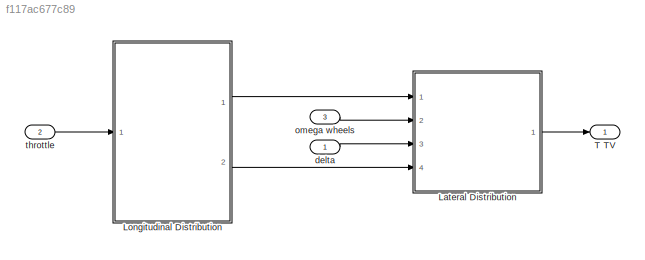
MODEL slx_f117ac677c89
KIND model
CONFIG AbsTol = auto
CONFIG EnableMultiTasking = off
CONFIG FixedStep = auto
CONFIG MaxStep = auto
CONFIG MinStep = auto
CONFIG RelTol = 1e-3
CONFIG SampleTimeConstraint = Unconstrained
CONFIG SolverName = VariableStepAuto
CONFIG StartTime = 0.0
CONFIG StopTime = 10.0
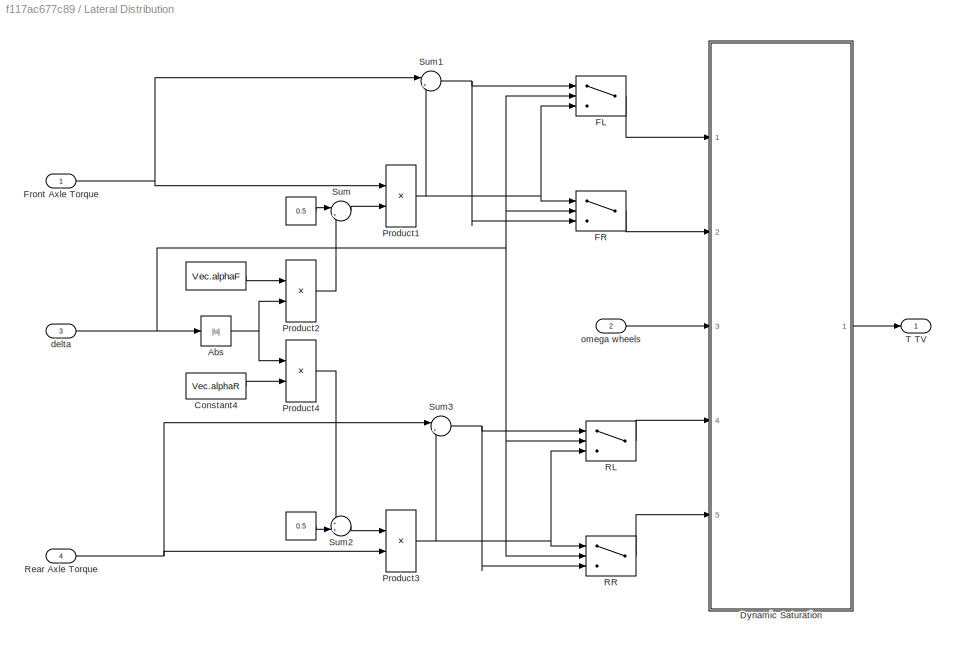
BLOCK [SubSystem] Lateral Distribution
  Ports = [4, 1]
  RequestExecContextInheritance = off
BLOCK [Constant] Lateral Distribution/ 
  Value = 0.5
BLOCK [Constant] Lateral Distribution/   
  Value = 0.5
BLOCK [Abs] Lateral Distribution/Abs
  SaturateOnIntegerOverflow = off
BLOCK [Constant] Lateral Distribution/Constant4
  Value = Vec.alphaR
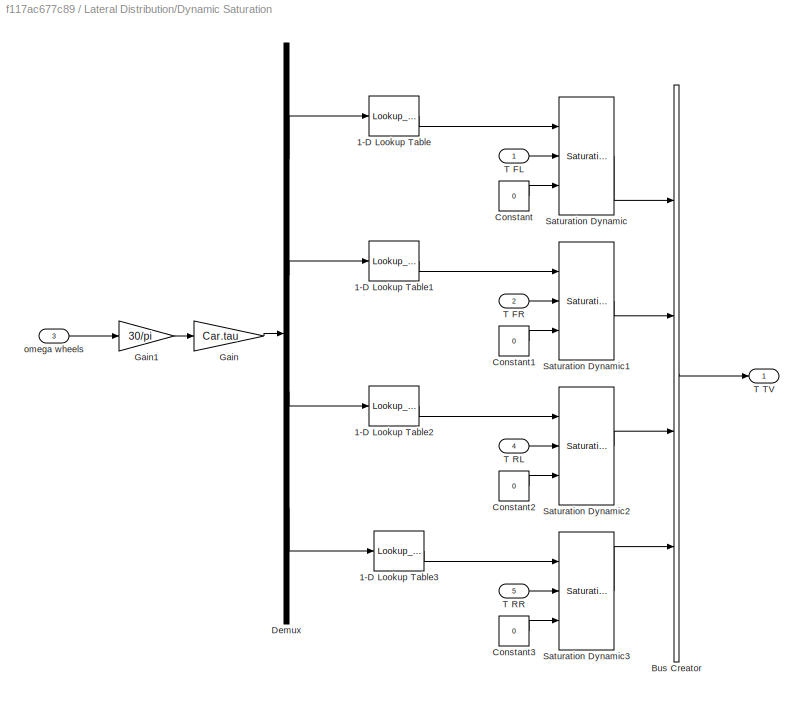
BLOCK [SubSystem] Lateral Distribution/Dynamic Saturation
  Ports = [5, 1]
  RequestExecContextInheritance = off
BLOCK [Lookup_n-D] Lateral Distribution/Dynamic Saturation/1-D Lookup Table
  BreakpointsForDimension1 = Car.rpm
  InputPortMap = u0
  InternalRulePriority = Speed
  NumberOfTableDimensions = 1
  Ports = [1, 1]
  RndMeth = Simplest
  Table = Car.torque
BLOCK [Lookup_n-D] Lateral Distribution/Dynamic Saturation/1-D Lookup Table1
  BreakpointsForDimension1 = Car.rpm
  InputPortMap = u0
  InternalRulePriority = Speed
  NumberOfTableDimensions = 1
  Ports = [1, 1]
  RndMeth = Simplest
  Table = Car.torque
BLOCK [Lookup_n-D] Lateral Distribution/Dynamic Saturation/1-D Lookup Table2
  BreakpointsForDimension1 = Car.rpm
  InputPortMap = u0
  InternalRulePriority = Speed
  NumberOfTableDimensions = 1
  Ports = [1, 1]
  RndMeth = Simplest
  Table = Car.torque
BLOCK [Lookup_n-D] Lateral Distribution/Dynamic Saturation/1-D Lookup Table3
  BreakpointsForDimension1 = Car.rpm
  InputPortMap = u0
  InternalRulePriority = Speed
  NumberOfTableDimensions = 1
  Ports = [1, 1]
  RndMeth = Simplest
  Table = Car.torque
BLOCK [BusCreator] Lateral Distribution/Dynamic Saturation/Bus Creator
  DisplayOption = bar
  InheritFromInputs = on
  Inputs = 4
  Ports = [4, 1]
BLOCK [Constant] Lateral Distribution/Dynamic Saturation/Constant
  Value = 0
BLOCK [Constant] Lateral Distribution/Dynamic Saturation/Constant1
  Value = 0
BLOCK [Constant] Lateral Distribution/Dynamic Saturation/Constant2
  Value = 0
BLOCK [Constant] Lateral Distribution/Dynamic Saturation/Constant3
  Value = 0
BLOCK [Demux] Lateral Distribution/Dynamic Saturation/Demux
  Ports = [1, 4]
BLOCK [Gain] Lateral Distribution/Dynamic Saturation/Gain
  Gain = Car.tau
BLOCK [Gain] Lateral Distribution/Dynamic Saturation/Gain1
  Gain = 30/pi
BLOCK [Reference] Lateral Distribution/Dynamic Saturation/Saturation Dynamic  REF=simulink/Discontinuities/Saturation
Dynamic
  Ports = [3, 1]
  SourceBlock = simulink/Discontinuities/Saturation\nDynamic
  SourceProductBaseCode = SL
  SourceType = Saturation Dynamic
BLOCK [Reference] Lateral Distribution/Dynamic Saturation/Saturation Dynamic1  REF=simulink/Discontinuities/Saturation
Dynamic
  Ports = [3, 1]
  SourceBlock = simulink/Discontinuities/Saturation\nDynamic
  SourceProductBaseCode = SL
  SourceType = Saturation Dynamic
BLOCK [Reference] Lateral Distribution/Dynamic Saturation/Saturation Dynamic2  REF=simulink/Discontinuities/Saturation
Dynamic
  Ports = [3, 1]
  SourceBlock = simulink/Discontinuities/Saturation\nDynamic
  SourceProductBaseCode = SL
  SourceType = Saturation Dynamic
BLOCK [Reference] Lateral Distribution/Dynamic Saturation/Saturation Dynamic3  REF=simulink/Discontinuities/Saturation
Dynamic
  Ports = [3, 1]
  SourceBlock = simulink/Discontinuities/Saturation\nDynamic
  SourceProductBaseCode = SL
  SourceType = Saturation Dynamic
BLOCK [Inport] Lateral Distribution/Dynamic Saturation/T FL
BLOCK [Inport] Lateral Distribution/Dynamic Saturation/T FR
  Port = 2
BLOCK [Inport] Lateral Distribution/Dynamic Saturation/T RL
  Port = 4
BLOCK [Inport] Lateral Distribution/Dynamic Saturation/T RR
  Port = 5
BLOCK [Outport] Lateral Distribution/Dynamic Saturation/T TV
BLOCK [Inport] Lateral Distribution/Dynamic Saturation/omega wheels
  Port = 3
BLOCK [Switch] Lateral Distribution/FL
  Criteria = u2 > Threshold
  InputSameDT = off
  SaturateOnIntegerOverflow = off
BLOCK [Switch] Lateral Distribution/FR
  Criteria = u2 > Threshold
  InputSameDT = off
  SaturateOnIntegerOverflow = off
BLOCK [Inport] Lateral Distribution/Front Axle Torque
BLOCK [Product] Lateral Distribution/Product1
  Ports = [2, 1]
BLOCK [Product] Lateral Distribution/Product2
  Ports = [2, 1]
BLOCK [Product] Lateral Distribution/Product3
  Ports = [2, 1]
BLOCK [Product] Lateral Distribution/Product4
  Ports = [2, 1]
BLOCK [Switch] Lateral Distribution/RL
  Criteria = u2 > Threshold
  InputSameDT = off
  SaturateOnIntegerOverflow = off
BLOCK [Switch] Lateral Distribution/RR
  Criteria = u2 > Threshold
  InputSameDT = off
  SaturateOnIntegerOverflow = off
BLOCK [Inport] Lateral Distribution/Rear Axle Torque
  Port = 4
BLOCK [Sum] Lateral Distribution/Sum
  Inputs = |++
  Ports = [2, 1]
BLOCK [Sum] Lateral Distribution/Sum1
  Inputs = |+-
  Ports = [2, 1]
BLOCK [Sum] Lateral Distribution/Sum2
  Inputs = ++|
  Ports = [2, 1]
BLOCK [Sum] Lateral Distribution/Sum3
  Inputs = |+-
  Ports = [2, 1]
BLOCK [Outport] Lateral Distribution/T TV
BLOCK [Inport] Lateral Distribution/delta
  Port = 3
BLOCK [Inport] Lateral Distribution/omega wheels
  Port = 2
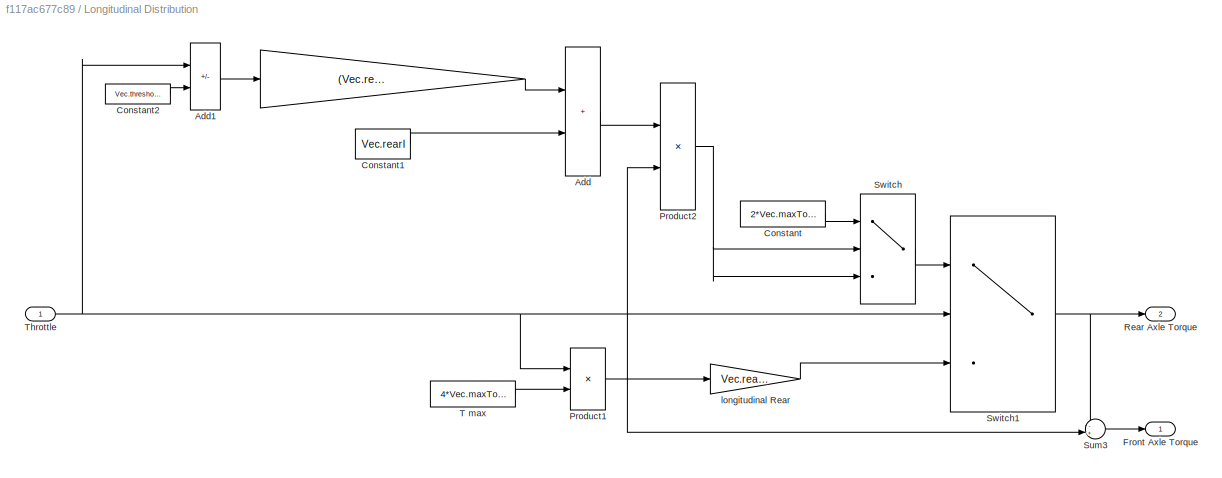
BLOCK [SubSystem] Longitudinal Distribution
  Ports = [1, 2]
  RequestExecContextInheritance = off
BLOCK [Gain] Longitudinal Distribution/ 
  Gain = (Vec.rearF - Vec.rearI)/(1 - Vec.threshold)
BLOCK [Outport] Longitudinal Distribution/ Rear Axle Torque
  Port = 2
BLOCK [Sum] Longitudinal Distribution/Add
  IconShape = rectangular
  Ports = [2, 1]
BLOCK [Sum] Longitudinal Distribution/Add1
  IconShape = rectangular
  Inputs = +-
  Ports = [2, 1]
BLOCK [Constant] Longitudinal Distribution/Constant
  Value = 2*Vec.maxTorque
BLOCK [Constant] Longitudinal Distribution/Constant1
  Value = Vec.rearI
BLOCK [Constant] Longitudinal Distribution/Constant2
  Value = Vec.threshold
BLOCK [Outport] Longitudinal Distribution/Front Axle Torque
BLOCK [Product] Longitudinal Distribution/Product1
  Ports = [2, 1]
BLOCK [Product] Longitudinal Distribution/Product2
  Ports = [2, 1]
BLOCK [Sum] Longitudinal Distribution/Sum3
  Inputs = -+|
  Ports = [2, 1]
BLOCK [Switch] Longitudinal Distribution/Switch
  Criteria = u2 > Threshold
  InputSameDT = off
  SaturateOnIntegerOverflow = off
  Threshold = 2*Vec.torqueMax
BLOCK [Switch] Longitudinal Distribution/Switch1
  Criteria = u2 > Threshold
  InputSameDT = off
  SaturateOnIntegerOverflow = off
  Threshold = Vec.threshold
BLOCK [Constant] Longitudinal Distribution/T max 
  Value = 4*Vec.maxTorque
BLOCK [Inport] Longitudinal Distribution/Throttle
BLOCK [Gain] Longitudinal Distribution/longitudinal Rear
  Gain = Vec.rearI
BLOCK [Outport] T TV
BLOCK [Inport] delta
BLOCK [Inport] omega wheels
  Port = 3
BLOCK [Inport] throttle 
  Port = 2
LINE Lateral Distribution/   :1 -> Lateral Distribution/Sum2:2
NET Lateral Distribution/ :1 -> Lateral Distribution/Product2:1, Lateral Distribution/Sum:1
NET Lateral Distribution/Abs:1 -> Lateral Distribution/Product2:2, Lateral Distribution/Product4:1
LINE Lateral Distribution/Constant4:1 -> Lateral Distribution/Product4:2
LINE Lateral Distribution/Dynamic Saturation/1-D Lookup Table1:1 -> Lateral Distribution/Dynamic Saturation/Saturation Dynamic1:1
LINE Lateral Distribution/Dynamic Saturation/1-D Lookup Table2:1 -> Lateral Distribution/Dynamic Saturation/Saturation Dynamic2:1
LINE Lateral Distribution/Dynamic Saturation/1-D Lookup Table3:1 -> Lateral Distribution/Dynamic Saturation/Saturation Dynamic3:1
LINE Lateral Distribution/Dynamic Saturation/1-D Lookup Table:1 -> Lateral Distribution/Dynamic Saturation/Saturation Dynamic:1
LINE Lateral Distribution/Dynamic Saturation/Bus Creator:1 -> Lateral Distribution/Dynamic Saturation/T TV:1
LINE Lateral Distribution/Dynamic Saturation/Constant1:1 -> Lateral Distribution/Dynamic Saturation/Saturation Dynamic1:3
LINE Lateral Distribution/Dynamic Saturation/Constant2:1 -> Lateral Distribution/Dynamic Saturation/Saturation Dynamic2:3
LINE Lateral Distribution/Dynamic Saturation/Constant3:1 -> Lateral Distribution/Dynamic Saturation/Saturation Dynamic3:3
LINE Lateral Distribution/Dynamic Saturation/Constant:1 -> Lateral Distribution/Dynamic Saturation/Saturation Dynamic:3
LINE Lateral Distribution/Dynamic Saturation/Demux:1 -> Lateral Distribution/Dynamic Saturation/1-D Lookup Table:1
LINE Lateral Distribution/Dynamic Saturation/Demux:2 -> Lateral Distribution/Dynamic Saturation/1-D Lookup Table1:1
LINE Lateral Distribution/Dynamic Saturation/Demux:3 -> Lateral Distribution/Dynamic Saturation/1-D Lookup Table2:1
LINE Lateral Distribution/Dynamic Saturation/Demux:4 -> Lateral Distribution/Dynamic Saturation/1-D Lookup Table3:1
LINE Lateral Distribution/Dynamic Saturation/Gain1:1 -> Lateral Distribution/Dynamic Saturation/Gain:1
LINE Lateral Distribution/Dynamic Saturation/Gain:1 -> Lateral Distribution/Dynamic Saturation/Demux:1
LINE Lateral Distribution/Dynamic Saturation/Saturation Dynamic1:1 -> Lateral Distribution/Dynamic Saturation/Bus Creator:2
LINE Lateral Distribution/Dynamic Saturation/Saturation Dynamic2:1 -> Lateral Distribution/Dynamic Saturation/Bus Creator:3
LINE Lateral Distribution/Dynamic Saturation/Saturation Dynamic3:1 -> Lateral Distribution/Dynamic Saturation/Bus Creator:4
LINE Lateral Distribution/Dynamic Saturation/Saturation Dynamic:1 -> Lateral Distribution/Dynamic Saturation/Bus Creator:1
LINE Lateral Distribution/Dynamic Saturation/T FL:1 -> Lateral Distribution/Dynamic Saturation/Saturation Dynamic:2
LINE Lateral Distribution/Dynamic Saturation/T FR:1 -> Lateral Distribution/Dynamic Saturation/Saturation Dynamic1:2
LINE Lateral Distribution/Dynamic Saturation/T RL:1 -> Lateral Distribution/Dynamic Saturation/Saturation Dynamic2:2
LINE Lateral Distribution/Dynamic Saturation/T RR:1 -> Lateral Distribution/Dynamic Saturation/Saturation Dynamic3:2
LINE Lateral Distribution/Dynamic Saturation/omega wheels:1 -> Lateral Distribution/Dynamic Saturation/Gain1:1
LINE Lateral Distribution/Dynamic Saturation:1 -> Lateral Distribution/T TV:1
LINE Lateral Distribution/FL:1 -> Lateral Distribution/Dynamic Saturation:1
LINE Lateral Distribution/FR:1 -> Lateral Distribution/Dynamic Saturation:2
NET Lateral Distribution/Front Axle Torque:1 -> Lateral Distribution/Product1:1, Lateral Distribution/Sum1:1
NET Lateral Distribution/Product1:1 -> Lateral Distribution/FL:3, Lateral Distribution/FR:1, Lateral Distribution/Sum1:2
LINE Lateral Distribution/Product2:1 -> Lateral Distribution/Sum:2
NET Lateral Distribution/Product3:1 -> Lateral Distribution/RL:3, Lateral Distribution/RR:1, Lateral Distribution/Sum3:2
LINE Lateral Distribution/Product4:1 -> Lateral Distribution/Sum2:1
LINE Lateral Distribution/RL:1 -> Lateral Distribution/Dynamic Saturation:4
LINE Lateral Distribution/RR:1 -> Lateral Distribution/Dynamic Saturation:5
NET Lateral Distribution/Rear Axle Torque:1 -> Lateral Distribution/Product3:2, Lateral Distribution/Sum3:1
NET Lateral Distribution/Sum1:1 -> Lateral Distribution/FL:1, Lateral Distribution/FR:3
LINE Lateral Distribution/Sum2:1 -> Lateral Distribution/Product3:1
NET Lateral Distribution/Sum3:1 -> Lateral Distribution/RL:1, Lateral Distribution/RR:3
LINE Lateral Distribution/Sum:1 -> Lateral Distribution/Product1:2
NET Lateral Distribution/delta:1 -> Lateral Distribution/Abs:1, Lateral Distribution/FL:2, Lateral Distribution/FR:2, Lateral Distribution/RL:2, Lateral Distribution/RR:2
LINE Lateral Distribution/omega wheels:1 -> Lateral Distribution/Dynamic Saturation:3
LINE Lateral Distribution:1 -> T TV:1
LINE Longitudinal Distribution/ :1 -> Longitudinal Distribution/Add:1
LINE Longitudinal Distribution/Add1:1 -> Longitudinal Distribution/ :1
LINE Longitudinal Distribution/Add:1 -> Longitudinal Distribution/Product2:1
LINE Longitudinal Distribution/Constant1:1 -> Longitudinal Distribution/Add:2
LINE Longitudinal Distribution/Constant2:1 -> Longitudinal Distribution/Add1:2
LINE Longitudinal Distribution/Constant:1 -> Longitudinal Distribution/Switch:1
NET Longitudinal Distribution/Product1:1 -> Longitudinal Distribution/Product2:2, Longitudinal Distribution/Sum3:2, Longitudinal Distribution/longitudinal Rear:1
NET Longitudinal Distribution/Product2:1 -> Longitudinal Distribution/Switch:2, Longitudinal Distribution/Switch:3
LINE Longitudinal Distribution/Sum3:1 -> Longitudinal Distribution/Front Axle Torque:1
NET Longitudinal Distribution/Switch1:1 -> Longitudinal Distribution/ Rear Axle Torque:1, Longitudinal Distribution/Sum3:1
LINE Longitudinal Distribution/Switch:1 -> Longitudinal Distribution/Switch1:1
LINE Longitudinal Distribution/T max :1 -> Longitudinal Distribution/Product1:2
NET Longitudinal Distribution/Throttle:1 -> Longitudinal Distribution/Add1:1, Longitudinal Distribution/Product1:1, Longitudinal Distribution/Switch1:2
LINE Longitudinal Distribution/longitudinal Rear:1 -> Longitudinal Distribution/Switch1:3
LINE Longitudinal Distribution:1 -> Lateral Distribution:1
LINE Longitudinal Distribution:2 -> Lateral Distribution:4
LINE delta:1 -> Lateral Distribution:3
LINE omega wheels:1 -> Lateral Distribution:2
LINE throttle :1 -> Longitudinal Distribution:1
note: NET lines group one-source signal fan-out (src -> all destinations, sorted); 1:1 wires keep LINE
